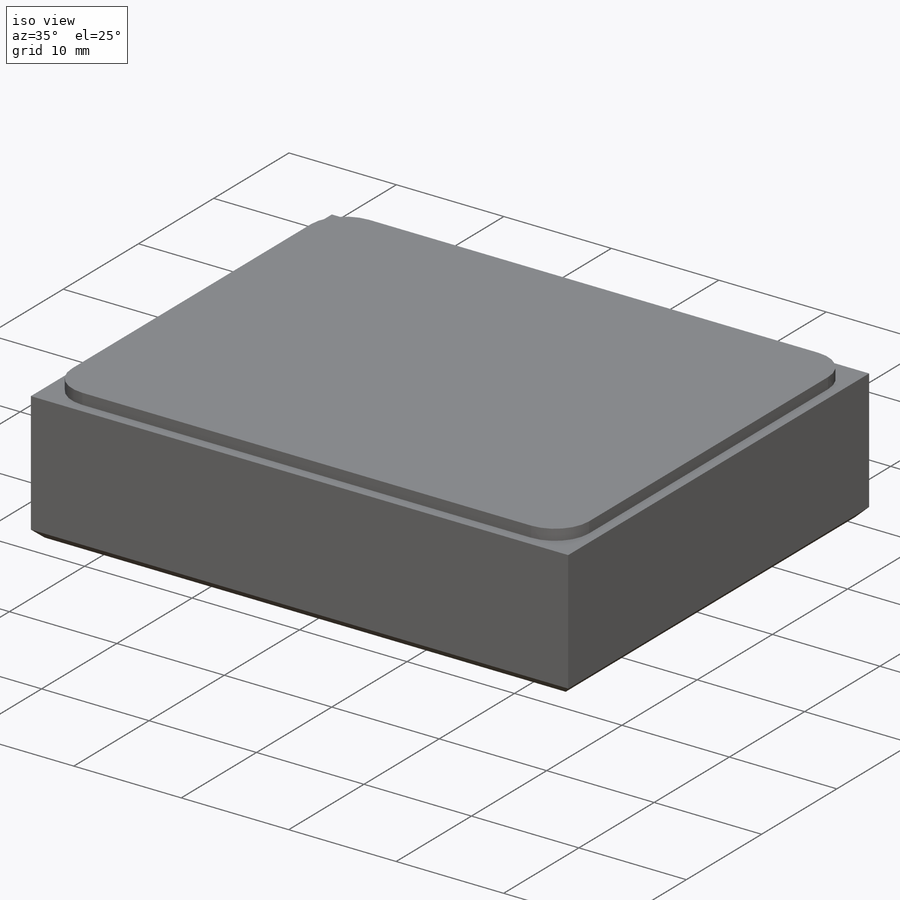
[diagram: iso view]
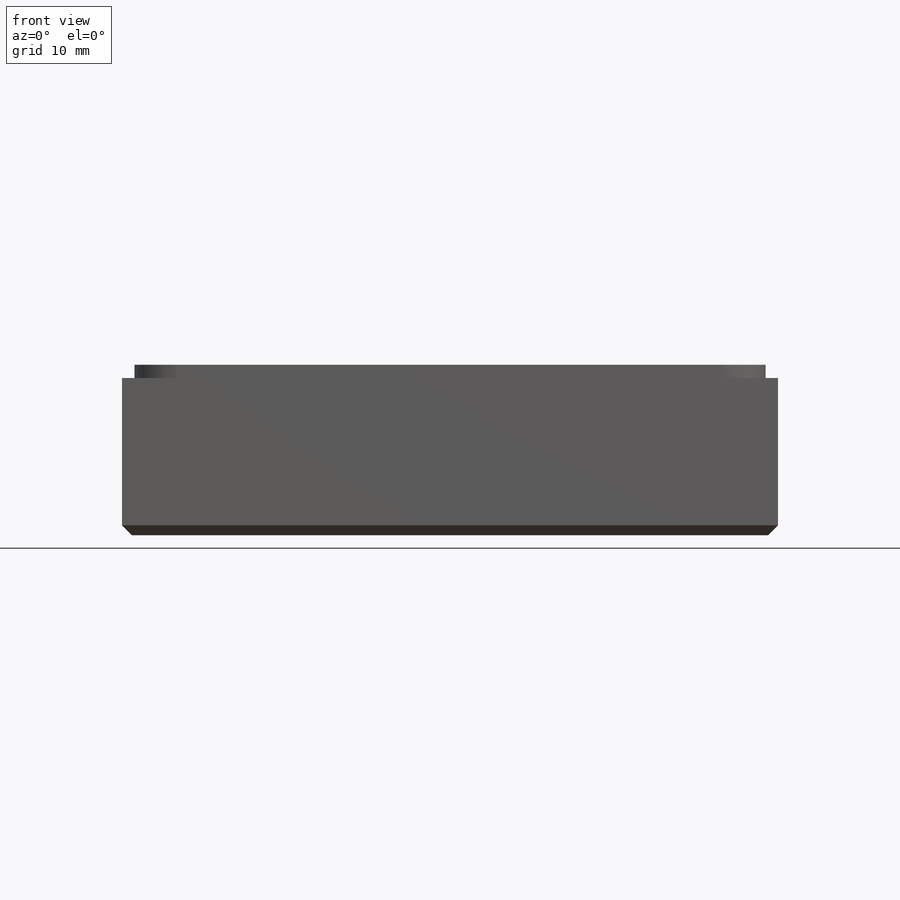
[diagram: front view]
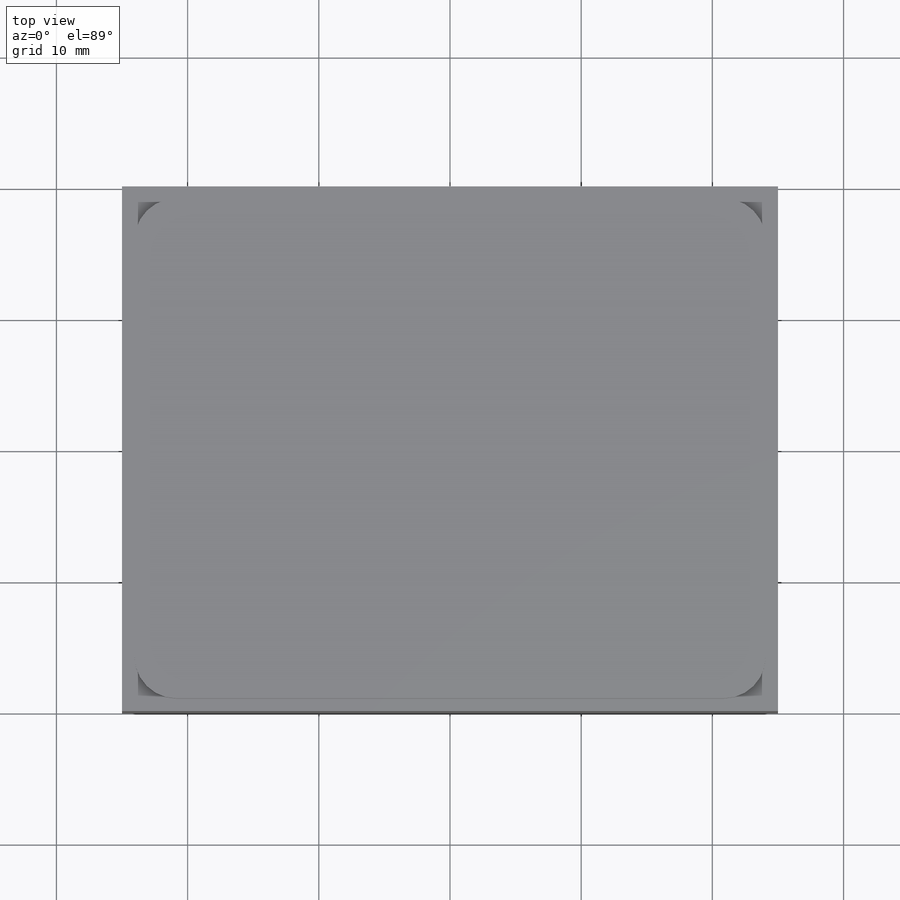
[diagram: top view]
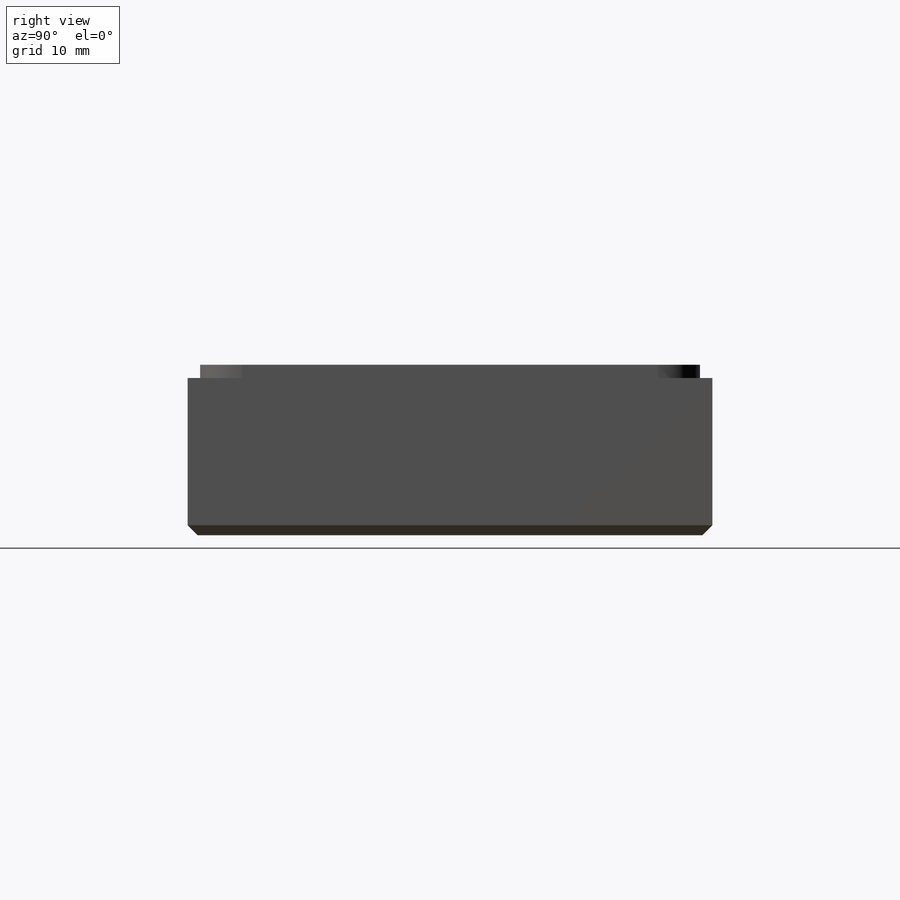
[diagram: right view]
SOLIDWORKS PART (.sldprt)
format: sldprt  version: not decoded by parser v0  size: 369,152 bytes
history: native  units: mm
features: sketch x13, hole x5, thread x3, extrude x2, material x1, pattern_circular x1, plane x1, cut_revolve x1, chamfer x1 (+15 scaffold rows collapsed)
feature tree (43):
  scaffold x15  (default folders/planes/origin — collapsed)
  material  "6061 Alloy"
  sketch  "Sketch1"  dims[D1=40.0mm D2=50.0mm]
  extrude  "Extrude1"  Depth=11.9888mm
  sketch  "Sketch2"  dims[D5=3.175mm D1=0.9525mm D2=48.1076mm D3=0.9525mm D4=38.1mm]
  hole  "M5x0.8 Tapped Hole1"  Diameter=4.2mm Depth=9.5758mm
  sketch  "Sketch5"  dims[D1=25.019mm D2=5.334mm]
  sketch  "Sketch4"  dims[hole-wizard template sketch: 47 standard entries collapsed; hole parameters kept: c15.Tap Drill Depth=9.5758mm c15.D3=~14.816244mm c15.Drill Angle=118.0deg]
  thread  "Hole Thread1"  Diameter=5.588mm  [1 undecoded]
  hole  "1/8 (0.125) Diameter Hole1"  Diameter=3.175mm Depth=6.35mm
  sketch  "Sketch7"  dims[c1.D1=8.0mm c1.D2=20.0mm c2.D1=42.0mm]
  sketch  "Sketch6"  dims[hole-wizard template sketch: 47 standard entries collapsed; hole parameters kept: c15.Hole Depth=6.35mm c15.D3=~14.816244mm c15.Drill Angle=180.0deg]
  hole  "M3x0.5 Tapped Hole1"  [1 undecoded]
  sketch  "Sketch9"  dims[D1=10.795mm]
  thread  "Hole Thread2"  Diameter=4.060012mm  [1 undecoded]
  sketch  "Sketch8"  dims[hole-wizard template sketch: 47 standard entries collapsed; hole parameters kept: c15.Tap Drill Depth=6.5532mm c15.D3=~14.816244mm c15.Drill Angle=118.0deg]
  pattern_circular  "CirPattern1"  Count=3 Angle=360deg
  hole  "5/32 (0.15625) Diameter Hole1"  Diameter=3.96875mm Depth=6.2484mm
  sketch  "Sketch11"
  sketch  "Sketch10"  dims[hole-wizard template sketch: 47 standard entries collapsed; hole parameters kept: c15.Hole Depth=6.2484mm c15.D3=~14.816244mm c15.Drill Angle=180.0deg]
  plane  "Plane1"  Offset=0.508mm
  sketch  "Sketch12"  dims[D1=13.0048mm]
  cut_revolve  "Cut-Revolve1"  Angle=360deg
  hole  "M3x0.5 Tapped Hole2"  Diameter=2.5mm Depth=5.7912mm
  sketch  "Sketch14"  dims[D1=8.0mm]
  sketch  "Sketch13"  dims[hole-wizard template sketch: 47 standard entries collapsed; hole parameters kept: c15.Tap Drill Depth=5.7912mm c15.D3=~14.816244mm c15.Drill Angle=118.0deg]
  thread  "Hole Thread3"  Diameter=3.302mm  [1 undecoded]
  chamfer  "Chamfer1"  Distance=0.762mm Angle=45deg
  extrude  "Extrude2"  Depth=1.016mm
decode coverage: 24 of 26 modeling features carry decoded parameters
note: ~ marks probable driven/reference dimensions
note: 4 parameter values undecoded
summary: Diameter pulled from absorbed wizard sketch
note: suppression state not decoded; provenance and decode notes live in map.json
